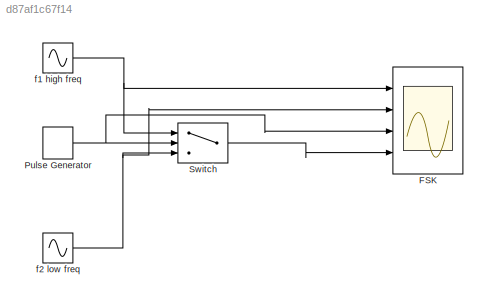
MODEL slx_d87af1c67f14
KIND model
BLOCK [Scope] FSK
  Floating = off
  LimitDataPoints = off
  NumInputPorts = 4
  Ports = [4]
  ShowLegends = off
  YMax = 5~5~5~5
  YMin = -5~-5~-5~-5
BLOCK [DiscretePulseGenerator] Pulse Generator
  Amplitude = 4
  Ports = [0, 1]
  PulseType = Time based
  PulseWidth = 50
BLOCK [Switch] Switch
  Criteria = u2 > Threshold
  InputSameDT = off
  SaturateOnIntegerOverflow = off
  Threshold = 0.1
BLOCK [Sin] f1 high freq
  Amplitude = 4
  Frequency = 50
  Ports = [0, 1]
  SampleTime = 0.001
BLOCK [Sin] f2 low freq
  Amplitude = 4
  Frequency = 30
  Ports = [0, 1]
  SampleTime = 0.001
NET Pulse Generator:1 -> FSK:3, Switch:2
LINE Switch:1 -> FSK:4
NET f1 high freq:1 -> FSK:1, Switch:1
NET f2 low freq:1 -> FSK:2, Switch:3
note: NET lines group one-source signal fan-out (src -> all destinations, sorted); 1:1 wires keep LINE
